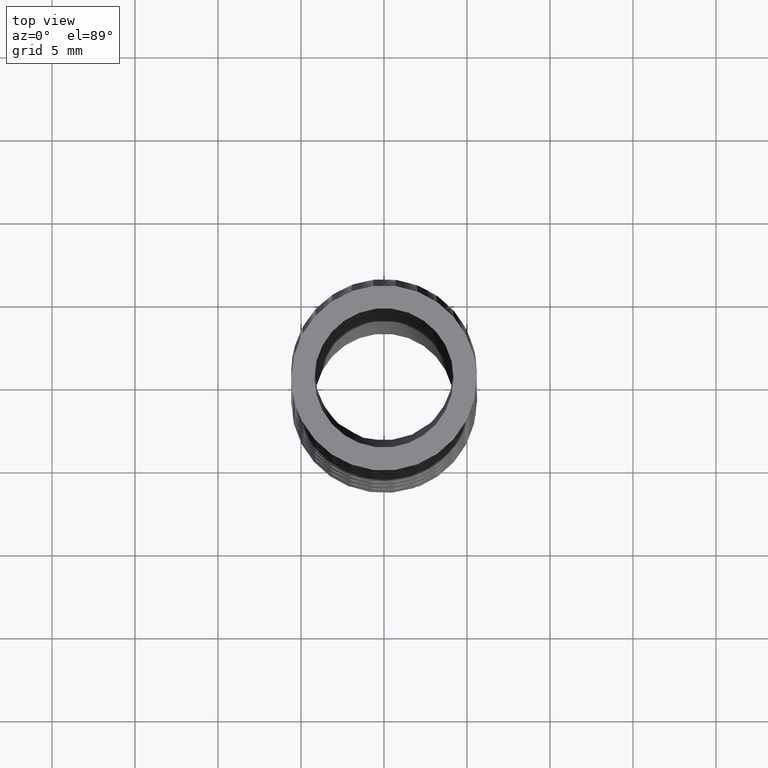
[diagram: clean part render]
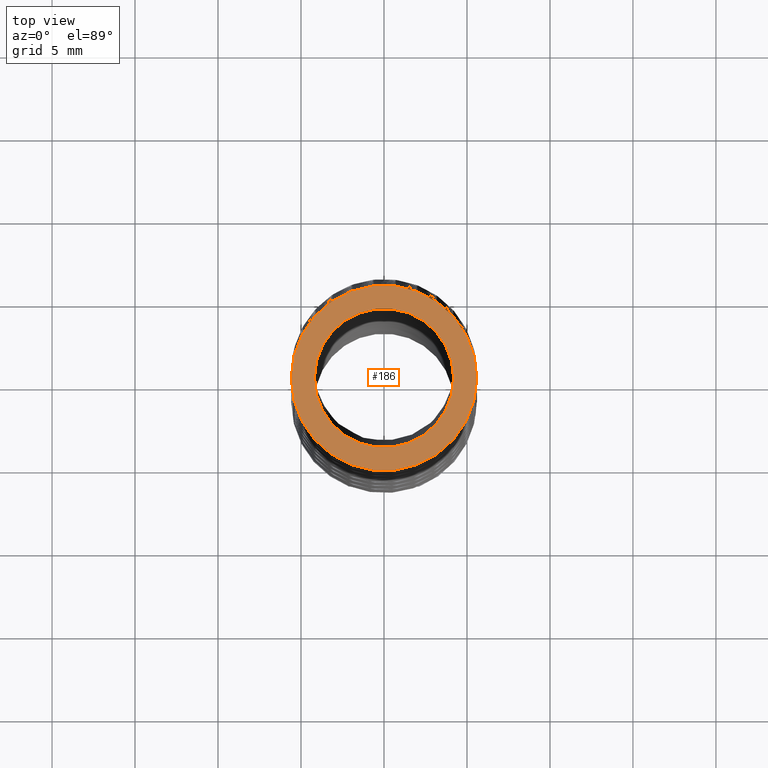
[diagram: same view with one face highlighted and labeled with its STEP entity id]
A machine part, top view. The second image highlights one B-rep face of the part: STEP entity #186.
In plain terms, the highlighted planar face has unit normal (0, 0, 1).
Its self-contained STEP definition (entity closure, byte-faithful):
#159 = EDGE_LOOP ( 'NONE', ( #310, #264 ) ) ;
#186 = ADVANCED_FACE ( 'NONE', ( #3677, #3705 ), #3585, .T. ) ;
#187 = EDGE_LOOP ( 'NONE', ( #246, #290 ) ) ;
#246 = ORIENTED_EDGE ( 'NONE', *, *, #11764, .F. ) ;
#247 = EDGE_CURVE ( 'NONE', #11772, #11783, #4138, .T. ) ;
#264 = ORIENTED_EDGE ( 'NONE', *, *, #11771, .T. ) ;
#290 = ORIENTED_EDGE ( 'NONE', *, *, #291, .F. ) ;
#291 = EDGE_CURVE ( 'NONE', #11736, #11766, #4180, .T. ) ;
#310 = ORIENTED_EDGE ( 'NONE', *, *, #247, .T. ) ;
#3585 = PLANE ( 'NONE',  #3763 ) ;
#3614 = DIRECTION ( 'NONE',  ( 1.000000000000000000, 0.0000000000000000000, 0.0000000000000000000 ) ) ;
#3677 = FACE_BOUND ( 'NONE', #187, .T. ) ;
#3705 = FACE_OUTER_BOUND ( 'NONE', #159, .T. ) ;
#3761 = DIRECTION ( 'NONE',  ( 0.0000000000000000000, 0.0000000000000000000, 1.000000000000000000 ) ) ;
#3762 = CARTESIAN_POINT ( 'NONE',  ( 0.0000000000000000000, 0.0000000000000000000, 0.0000000000000000000 ) ) ;
#3763 = AXIS2_PLACEMENT_3D ( 'NONE', #3762, #3761, #3614 ) ;
#4040 = DIRECTION ( 'NONE',  ( 1.000000000000000000, 0.0000000000000000000, 0.0000000000000000000 ) ) ;
#4057 = AXIS2_PLACEMENT_3D ( 'NONE', #4082, #4081, #4080 ) ;
#4080 = DIRECTION ( 'NONE',  ( 1.000000000000000000, 0.0000000000000000000, 0.0000000000000000000 ) ) ;
#4081 = DIRECTION ( 'NONE',  ( 0.0000000000000000000, 0.0000000000000000000, 1.000000000000000000 ) ) ;
#4082 = CARTESIAN_POINT ( 'NONE',  ( 0.0000000000000000000, 0.0000000000000000000, 0.0000000000000000000 ) ) ;
#4131 = CARTESIAN_POINT ( 'NONE',  ( 0.0000000000000000000, 0.0000000000000000000, 0.0000000000000000000 ) ) ;
#4138 = CIRCLE ( 'NONE', #4057, 0.2199999999999999700 ) ;
#4177 = DIRECTION ( 'NONE',  ( 0.0000000000000000000, 0.0000000000000000000, 1.000000000000000000 ) ) ;
#4178 = AXIS2_PLACEMENT_3D ( 'NONE', #4131, #4177, #4040 ) ;
#4180 = CIRCLE ( 'NONE', #4178, 0.1650000000000000100 ) ;
#10788 = CARTESIAN_POINT ( 'NONE',  ( -0.1650000000000000100, 2.020667218593132900E-017, 0.0000000000000000000 ) ) ;
#10869 = CARTESIAN_POINT ( 'NONE',  ( 0.1650000000000000100, 0.0000000000000000000, 0.0000000000000000000 ) ) ;
#10870 = DIRECTION ( 'NONE',  ( 1.000000000000000000, 0.0000000000000000000, 0.0000000000000000000 ) ) ;
#10871 = DIRECTION ( 'NONE',  ( 0.0000000000000000000, 0.0000000000000000000, 1.000000000000000000 ) ) ;
#10872 = CARTESIAN_POINT ( 'NONE',  ( 0.0000000000000000000, 0.0000000000000000000, 0.0000000000000000000 ) ) ;
#10873 = AXIS2_PLACEMENT_3D ( 'NONE', #10872, #10871, #10870 ) ;
#10874 = CIRCLE ( 'NONE', #10873, 0.1650000000000000100 ) ;
#10960 = DIRECTION ( 'NONE',  ( 1.000000000000000000, 0.0000000000000000000, 0.0000000000000000000 ) ) ;
#10961 = DIRECTION ( 'NONE',  ( 0.0000000000000000000, 0.0000000000000000000, 1.000000000000000000 ) ) ;
#10962 = AXIS2_PLACEMENT_3D ( 'NONE', #11041, #10961, #10960 ) ;
#10963 = CIRCLE ( 'NONE', #10962, 0.2199999999999999700 ) ;
#10964 = CARTESIAN_POINT ( 'NONE',  ( 0.2199999999999999700, 0.0000000000000000000, 0.0000000000000000000 ) ) ;
#11041 = CARTESIAN_POINT ( 'NONE',  ( 0.0000000000000000000, 0.0000000000000000000, 0.0000000000000000000 ) ) ;
#11190 = CARTESIAN_POINT ( 'NONE',  ( -0.2199999999999999700, 2.694222958124176600E-017, 0.0000000000000000000 ) ) ;
#11736 = VERTEX_POINT ( 'NONE', #10788 ) ;
#11764 = EDGE_CURVE ( 'NONE', #11766, #11736, #10874, .T. ) ;
#11766 = VERTEX_POINT ( 'NONE', #10869 ) ;
#11771 = EDGE_CURVE ( 'NONE', #11783, #11772, #10963, .T. ) ;
#11772 = VERTEX_POINT ( 'NONE', #10964 ) ;
#11783 = VERTEX_POINT ( 'NONE', #11190 ) ;